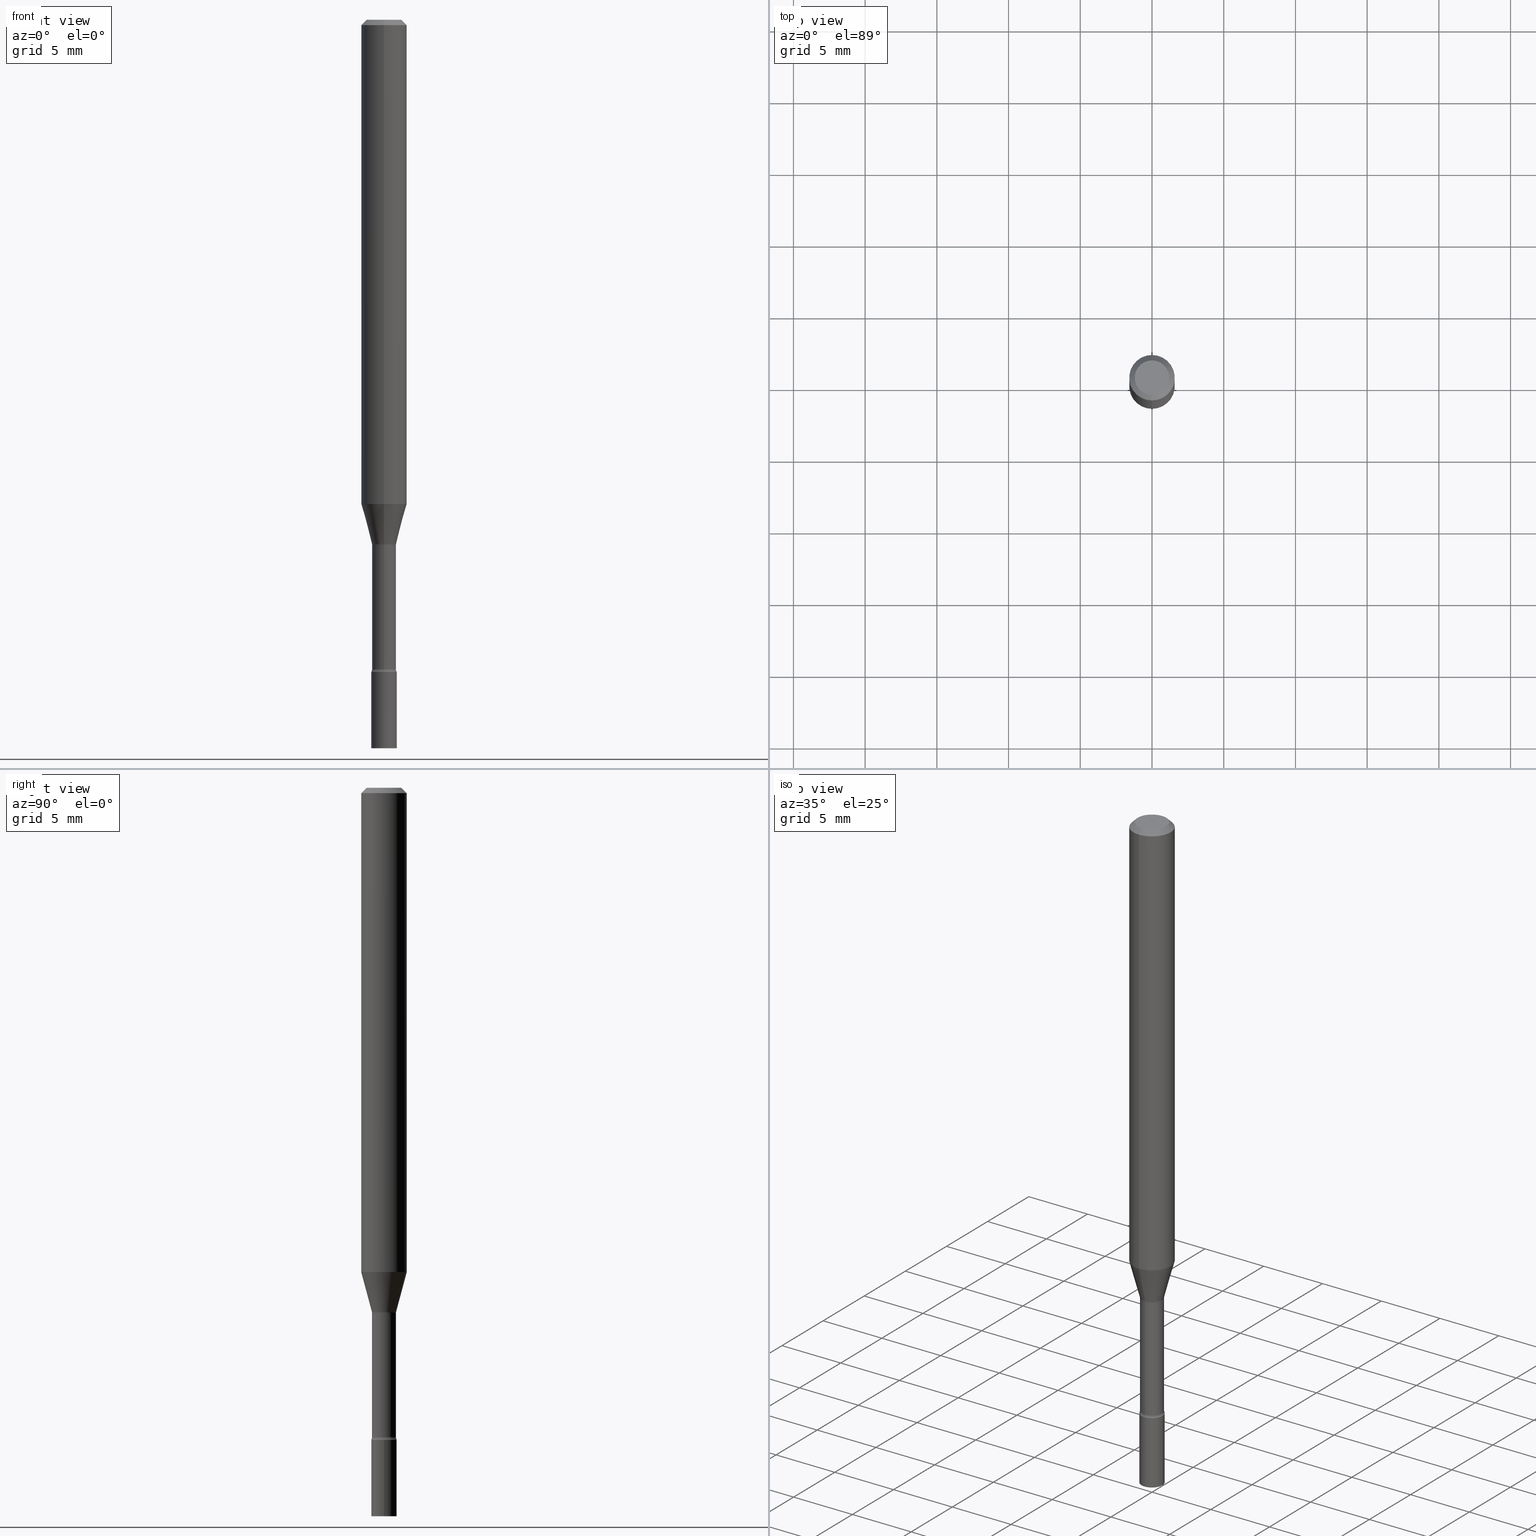
[diagram: canonical four-view strip — front | top / right | iso, engineering-drawing reading convention]
A machine part, canonical four-view strip (front | top / right | iso — engineering-drawing reading convention). The complete STEP part file that produces these views, byte-faithful:
ISO-10303-21;
HEADER;
FILE_DESCRIPTION (( 'STEP AP203' ),
    '1' );
FILE_NAME ('03469.STEP',
    '2024-03-08T21:27:20',
    ( '' ),
    ( '' ),
    'SwSTEP 2.0',
    'SolidWorks 2023',
    '' );
FILE_SCHEMA (( 'CONFIG_CONTROL_DESIGN' ));
ENDSEC;

DATA;
#1 = CARTESIAN_POINT ( 'NONE',  ( 3.668234508538909571E-31, -5.237177185941251155E-17, -0.01500000000000003067 ) ) ;
#2 = DIRECTION ( 'NONE',  ( -2.445489672359268108E-29, 3.491451457294160255E-15, 1.000000000000000000 ) ) ;
#3 = EDGE_CURVE ( 'NONE', #177, #472, #390, .T. ) ;
#4 = APPROVAL_STATUS ( 'not_yet_approved' ) ;
#5 = VECTOR ( 'NONE', #147, 39.37007874015748143 ) ;
#6 = APPROVAL ( #169, 'UNSPECIFIED' ) ;
#7 = CARTESIAN_POINT ( 'NONE',  ( 0.000000000000000000, 0.000000000000000000, 0.000000000000000000 ) ) ;
#8 = COORDINATED_UNIVERSAL_TIME_OFFSET ( 5, 0, .BEHIND. ) ;
#9 = ADVANCED_FACE ( 'NONE', ( #60 ), #498, .T. ) ;
#10 = ORIENTED_EDGE ( 'NONE', *, *, #168, .T. ) ;
#11 = APPROVAL_DATE_TIME ( #402, #151 ) ;
#12 = CLOSED_SHELL ( 'NONE', ( #445, #17, #199, #361, #441, #197, #440, #219, #27, #121, #187, #38, #231, #394 ) ) ;
#13 = DIRECTION ( 'NONE',  ( -6.982962677686266711E-15, -1.000000000000000000, 3.491451457294160649E-15 ) ) ;
#14 = AXIS2_PLACEMENT_3D ( 'NONE', #43, #270, #267 ) ;
#15 = PLANE ( 'NONE',  #26 ) ;
#16 = DIRECTION ( 'NONE',  ( 1.000000000000000000, -6.982962677686265922E-15, 4.876176775795936353E-29 ) ) ;
#17 = ADVANCED_FACE ( 'NONE', ( #399 ), #87, .T. ) ;
#18 = PERSON_AND_ORGANIZATION ( #368, #433 ) ;
#19 = EDGE_LOOP ( 'NONE', ( #506, #467, #296, #458 ) ) ;
#20 = DIRECTION ( 'NONE',  ( -2.445468806185136597E-29, 3.491481338843145583E-15, 1.000000000000000000 ) ) ;
#21 = DIRECTION ( 'NONE',  ( -2.445489672359267547E-29, 3.491451457294160649E-15, 1.000000000000000000 ) ) ;
#22 = FACE_OUTER_BOUND ( 'NONE', #391, .T. ) ;
#23 = CARTESIAN_POINT ( 'NONE',  ( 4.440892098500625669E-16, 0.06250000000000000000, -2.182157160808850159E-16 ) ) ;
#24 = CARTESIAN_POINT ( 'NONE',  ( 2.337685600650728039E-16, 0.03289999999999997787, -1.148687529449777837E-16 ) ) ;
#25 = DIRECTION ( 'NONE',  ( 2.445489672359268108E-29, -3.491451457294160255E-15, -1.000000000000000000 ) ) ;
#26 = AXIS2_PLACEMENT_3D ( 'NONE', #415, #411, #290 ) ;
#27 = ADVANCED_FACE ( 'NONE', ( #156 ), #294, .T. ) ;
#28 = CARTESIAN_POINT ( 'NONE',  ( 2.486899575160791170E-16, 0.03499999999999379302, -1.790000000000000258 ) ) ;
#29 = MANIFOLD_SOLID_BREP ( 'Body-Move/Copy2[1]', #396 ) ;
#30 = DIRECTION ( 'NONE',  ( 7.105427357601001859E-15, 1.000000000000000000, 0.000000000000000000 ) ) ;
#31 = ADVANCED_FACE ( 'NONE', ( #366 ), #41, .T. ) ;
#32 = DIRECTION ( 'NONE',  ( -2.445468806185136877E-29, 3.491481338843145188E-15, 1.000000000000000000 ) ) ;
#33 = AXIS2_PLACEMENT_3D ( 'NONE', #331, #201, #93 ) ;
#34 = LOCAL_TIME ( 16, 27, 20.00000000000000000, #8 ) ;
#35 = FACE_OUTER_BOUND ( 'NONE', #339, .T. ) ;
#36 = CARTESIAN_POINT ( 'NONE',  ( 3.840629472727447874E-16, 0.04749999999999999362, -1.947592745229183872E-16 ) ) ;
#37 = ADVANCED_BREP_SHAPE_REPRESENTATION ( '03469', ( #29, #189, #126 ), #146 ) ;
#38 = ADVANCED_FACE ( 'NONE', ( #478 ), #316, .F. ) ;
#39 = CIRCLE ( 'NONE', #517, 0.03500000000000000333 ) ;
#40 = AXIS2_PLACEMENT_3D ( 'NONE', #380, #494, #99 ) ;
#41 = PLANE ( 'NONE',  #83 ) ;
#42 = EDGE_CURVE ( 'NONE', #447, #298, #39, .T. ) ;
#43 = CARTESIAN_POINT ( 'NONE',  ( 3.526304362048191557E-29, -5.034628061512206795E-15, -1.441974787463810914 ) ) ;
#44 = EDGE_CURVE ( 'NONE', #370, #413, #479, .T. ) ;
#45 = APPROVAL ( #484, 'UNSPECIFIED' ) ;
#46 = DIRECTION ( 'NONE',  ( -2.438088387897960049E-29, 3.491481338843145188E-15, 1.000000000000000000 ) ) ;
#47 = DIRECTION ( 'NONE',  ( 1.000000000000000000, -7.105427357601001070E-15, 4.926315142598649056E-29 ) ) ;
#48 = CALENDAR_DATE ( 2024, 8, 3 ) ;
#49 = AXIS2_PLACEMENT_3D ( 'NONE', #228, #468, #30 ) ;
#50 = DIRECTION ( 'NONE',  ( 1.000000000000000000, -6.982962677686276966E-15, 0.000000000000000000 ) ) ;
#51 = ORIENTED_EDGE ( 'NONE', *, *, #88, .F. ) ;
#52 = PERSON_AND_ORGANIZATION_ROLE ( 'design_owner' ) ;
#53 = CARTESIAN_POINT ( 'NONE',  ( 3.407447217031514627E-16, 0.03341111260565895330, -1.438092501787272992 ) ) ;
#54 = ORIENTED_EDGE ( 'NONE', *, *, #85, .T. ) ;
#55 = CARTESIAN_POINT ( 'NONE',  ( 4.890937612370273194E-29, -6.982962677686291165E-15, -2.000000000000000000 ) ) ;
#56 = CARTESIAN_POINT ( 'NONE',  ( 0.000000000000000000, 0.000000000000000000, 0.000000000000000000 ) ) ;
#57 = ORIENTED_EDGE ( 'NONE', *, *, #430, .F. ) ;
#58 = CIRCLE ( 'NONE', #125, 0.04749999999999999362 ) ;
#59 = CARTESIAN_POINT ( 'NONE',  ( 4.377389163071394665E-29, -6.249751596529231267E-15, -1.790000000000000036 ) ) ;
#60 = FACE_OUTER_BOUND ( 'NONE', #170, .T. ) ;
#61 = DATE_AND_TIME ( #280, #277 ) ;
#62 = VERTEX_POINT ( 'NONE', #405 ) ;
#63 = CARTESIAN_POINT ( 'NONE',  ( 2.412292587905977528E-16, 0.03289999999999373287, -1.782345589506695971 ) ) ;
#64 = EDGE_CURVE ( 'NONE', #413, #62, #158, .T. ) ;
#65 = PLANE ( 'NONE',  #414 ) ;
#66 = EDGE_CURVE ( 'NONE', #298, #447, #381, .T. ) ;
#67 = CARTESIAN_POINT ( 'NONE',  ( 3.668234508538909571E-31, -5.237177185941251155E-17, -0.01500000000000003067 ) ) ;
#68 = ORIENTED_EDGE ( 'NONE', *, *, #162, .F. ) ;
#69 = DIRECTION ( 'NONE',  ( -1.000000000000000000, 6.982962677686265922E-15, -4.883557194083112340E-29 ) ) ;
#70 = AXIS2_PLACEMENT_3D ( 'NONE', #297, #460, #448 ) ;
#71 = LINE ( 'NONE', #435, #263 ) ;
#72 = ORIENTED_EDGE ( 'NONE', *, *, #315, .F. ) ;
#73 = DIRECTION ( 'NONE',  ( -2.445489672359267828E-29, 3.491451457294160649E-15, 1.000000000000000000 ) ) ;
#74 = ORIENTED_EDGE ( 'NONE', *, *, #194, .T. ) ;
#75 = CARTESIAN_POINT ( 'NONE',  ( 4.440892098500952553E-16, 0.06249999999999993755, -0.01500000000000024751 ) ) ;
#76 = CARTESIAN_POINT ( 'NONE',  ( -4.364351673553916201E-16, -0.06250000000000000000, 2.182157160808850159E-16 ) ) ;
#77 = CIRCLE ( 'NONE', #465, 0.01500000000000007924 ) ;
#78 = CARTESIAN_POINT ( 'NONE',  ( -4.364351673553912750E-16, -0.06250000000000005551, -0.01499999999999981209 ) ) ;
#79 = FACE_OUTER_BOUND ( 'NONE', #389, .T. ) ;
#80 = EDGE_CURVE ( 'NONE', #514, #512, #206, .T. ) ;
#81 = CC_DESIGN_PERSON_AND_ORGANIZATION_ASSIGNMENT ( #289, #161, ( #392 ) ) ;
#82 = DIRECTION ( 'NONE',  ( -6.982962677686265922E-15, -1.000000000000000000, 0.000000000000000000 ) ) ;
#83 = AXIS2_PLACEMENT_3D ( 'NONE', #520, #46, #362 ) ;
#84 = TOROIDAL_SURFACE ( 'NONE', #216, 0.04790000000000000507, 0.01500000000000002720 ) ;
#85 = EDGE_CURVE ( 'NONE', #365, #298, #77, .T. ) ;
#86 = LINE ( 'NONE', #116, #476 ) ;
#87 = CYLINDRICAL_SURFACE ( 'NONE', #120, 0.03289999999999997787 ) ;
#88 = EDGE_CURVE ( 'NONE', #365, #177, #461, .T. ) ;
#89 = SECURITY_CLASSIFICATION_LEVEL ( 'unclassified' ) ;
#90 = VECTOR ( 'NONE', #73, 39.37007874015748143 ) ;
#91 = APPROVAL_ROLE ( '' ) ;
#92 = AXIS2_PLACEMENT_3D ( 'NONE', #55, #181, #348 ) ;
#93 = DIRECTION ( 'NONE',  ( 1.000000000000000000, -6.982962677686265922E-15, 4.876176775795936353E-29 ) ) ;
#94 = CALENDAR_DATE ( 2024, 8, 3 ) ;
#95 = DIRECTION ( 'NONE',  ( -6.982962677686265922E-15, -1.000000000000000000, 3.483106191921935554E-15 ) ) ;
#96 = VERTEX_POINT ( 'NONE', #75 ) ;
#97 = PRODUCT_RELATED_PRODUCT_CATEGORY ( 'detail', '', ( #274 ) ) ;
#98 = PERSON_AND_ORGANIZATION ( #368, #433 ) ;
#99 = DIRECTION ( 'NONE',  ( -6.982962677686265922E-15, -1.000000000000000000, 4.370956789862821150E-15 ) ) ;
#100 = DATE_AND_TIME ( #129, #34 ) ;
#101 = CIRCLE ( 'NONE', #426, 0.03341111260566397706 ) ;
#102 = VECTOR ( 'NONE', #107, 39.37007874015748143 ) ;
#103 = DIRECTION ( 'NONE',  ( 4.937700262164548042E-15, 0.7071067811865451302, -0.7071067811865499042 ) ) ;
#104 = CARTESIAN_POINT ( 'NONE',  ( 3.516840361018078842E-29, -5.021030161088979322E-15, -1.438092501787272992 ) ) ;
#105 = ORIENTED_EDGE ( 'NONE', *, *, #66, .T. ) ;
#106 = ORIENTED_EDGE ( 'NONE', *, *, #194, .F. ) ;
#107 = DIRECTION ( 'NONE',  ( -2.445489672359267828E-29, 3.491451457294160649E-15, 1.000000000000000000 ) ) ;
#108 = EDGE_LOOP ( 'NONE', ( #356, #164 ) ) ;
#109 = CARTESIAN_POINT ( 'NONE',  ( 4.358670540980283234E-29, -6.223026365132013835E-15, -1.782345589506695971 ) ) ;
#110 = ORIENTED_EDGE ( 'NONE', *, *, #471, .F. ) ;
#111 = CYLINDRICAL_SURFACE ( 'NONE', #327, 0.03289999999999997787 ) ;
#112 = CIRCLE ( 'NONE', #284, 0.01500000000000002720 ) ;
#113 = CYLINDRICAL_SURFACE ( 'NONE', #238, 0.06250000000000000000 ) ;
#114 = CC_DESIGN_APPROVAL ( #45, ( #392 ) ) ;
#115 = EDGE_LOOP ( 'NONE', ( #344, #135, #254, #325 ) ) ;
#116 = CARTESIAN_POINT ( 'NONE',  ( -2.333085523452895390E-16, -0.03341111260566900082, -1.438092501787272992 ) ) ;
#117 = ORIENTED_EDGE ( 'NONE', *, *, #162, .T. ) ;
#118 = LENGTH_MEASURE_WITH_UNIT ( LENGTH_MEASURE( 0.02539999999999999897 ), #185 );
#119 = ORIENTED_EDGE ( 'NONE', *, *, #266, .T. ) ;
#120 = AXIS2_PLACEMENT_3D ( 'NONE', #516, #2, #229 ) ;
#121 = ADVANCED_FACE ( 'NONE', ( #306 ), #383, .F. ) ;
#122 = VECTOR ( 'NONE', #205, 39.37007874015748143 ) ;
#123 = FACE_OUTER_BOUND ( 'NONE', #128, .T. ) ;
#124 = CARTESIAN_POINT ( 'NONE',  ( 0.03500000000000000333, -2.444036937190193250E-16, 1.706661871528577808E-30 ) ) ;
#125 = AXIS2_PLACEMENT_3D ( 'NONE', #283, #240, #13 ) ;
#126 = AXIS2_PLACEMENT_3D ( 'NONE', #7, #408, #412 ) ;
#127 = CARTESIAN_POINT ( 'NONE',  ( -3.344839122611369110E-16, -0.04790000000000504271, -1.441974787463810692 ) ) ;
#128 = EDGE_LOOP ( 'NONE', ( #428, #72, #117, #501 ) ) ;
#129 = CALENDAR_DATE ( 2024, 8, 3 ) ;
#130 = CIRCLE ( 'NONE', #70, 0.03341111260566397706 ) ;
#131 = DIRECTION ( 'NONE',  ( -6.982962677686265922E-15, -1.000000000000000000, 0.000000000000000000 ) ) ;
#132 = CARTESIAN_POINT ( 'NONE',  ( 3.526334450545200357E-29, -5.034584973071959801E-15, -1.441974787463810914 ) ) ;
#133 = COORDINATED_UNIVERSAL_TIME_OFFSET ( 5, 0, .BEHIND. ) ;
#134 = DIRECTION ( 'NONE',  ( -2.445489672359268108E-29, 3.491451457294160255E-15, 1.000000000000000000 ) ) ;
#135 = ORIENTED_EDGE ( 'NONE', *, *, #471, .T. ) ;
#136 = EDGE_CURVE ( 'NONE', #407, #96, #215, .T. ) ;
#137 = FACE_OUTER_BOUND ( 'NONE', #387, .T. ) ;
#138 = TOROIDAL_SURFACE ( 'NONE', #140, 0.04790000000000003977, 0.01500000000000007924 ) ;
#139 = DIRECTION ( 'NONE',  ( -2.445489672359268108E-29, 3.491451457294160255E-15, 1.000000000000000000 ) ) ;
#140 = AXIS2_PLACEMENT_3D ( 'NONE', #109, #303, #260 ) ;
#141 = FACE_OUTER_BOUND ( 'NONE', #321, .T. ) ;
#142 = ORIENTED_EDGE ( 'NONE', *, *, #315, .T. ) ;
#143 = DIRECTION ( 'NONE',  ( 1.000000000000000000, -6.982962677686276966E-15, 0.000000000000000000 ) ) ;
#144 = CARTESIAN_POINT ( 'NONE',  ( 4.358707731713716870E-29, -6.222973105884972225E-15, -1.782345589506695971 ) ) ;
#145 = CYLINDRICAL_SURFACE ( 'NONE', #33, 0.03500000000000000333 ) ;
#146 =( GEOMETRIC_REPRESENTATION_CONTEXT ( 3 ) GLOBAL_UNCERTAINTY_ASSIGNED_CONTEXT ( ( #272 ) ) GLOBAL_UNIT_ASSIGNED_CONTEXT ( ( #401, #309, #474 ) ) REPRESENTATION_CONTEXT ( 'NONE', 'WORKASPACE' ) );
#147 = DIRECTION ( 'NONE',  ( -2.445489672359267828E-29, 3.491451457294160649E-15, 1.000000000000000000 ) ) ;
#148 = ORIENTED_EDGE ( 'NONE', *, *, #319, .F. ) ;
#149 = CARTESIAN_POINT ( 'NONE',  ( -2.297394720958429005E-16, -0.03290000000000503633, -1.441974787463810914 ) ) ;
#150 = ADVANCED_FACE ( 'NONE', ( #222 ), #145, .T. ) ;
#151 = APPROVAL ( #4, 'UNSPECIFIED' ) ;
#152 = CARTESIAN_POINT ( 'NONE',  ( 3.526304362048191557E-29, -5.034628061512206795E-15, -1.441974787463810914 ) ) ;
#153 = DIRECTION ( 'NONE',  ( 2.445489672359268108E-29, -3.491451457294160255E-15, -1.000000000000000000 ) ) ;
#154 = CONICAL_SURFACE ( 'NONE', #421, 0.06250000000000000000, 0.7853981633974483900 ) ;
#155 = CARTESIAN_POINT ( 'NONE',  ( 4.377426513523090216E-29, -6.249698108556547160E-15, -1.790000000000000036 ) ) ;
#156 = FACE_OUTER_BOUND ( 'NONE', #237, .T. ) ;
#157 = DIRECTION ( 'NONE',  ( -2.445489672359268108E-29, 3.491451457294160255E-15, 1.000000000000000000 ) ) ;
#158 = CIRCLE ( 'NONE', #432, 0.03500000000000000333 ) ;
#159 = APPROVAL_PERSON_ORGANIZATION ( #449, #45, #239 ) ;
#160 = MECHANICAL_CONTEXT ( 'NONE', #439, 'mechanical' ) ;
#161 = PERSON_AND_ORGANIZATION_ROLE ( 'creator' ) ;
#162 = EDGE_CURVE ( 'NONE', #385, #472, #112, .T. ) ;
#163 = CC_DESIGN_DATE_AND_TIME_ASSIGNMENT ( #100, #322, ( #236 ) ) ;
#164 = ORIENTED_EDGE ( 'NONE', *, *, #66, .F. ) ;
#165 = AXIS2_PLACEMENT_3D ( 'NONE', #132, #212, #417 ) ;
#166 = CIRCLE ( 'NONE', #232, 0.03289999999999995706 ) ;
#167 = DIRECTION ( 'NONE',  ( -2.445489672359267828E-29, 3.491451457294160649E-15, 1.000000000000000000 ) ) ;
#168 = EDGE_CURVE ( 'NONE', #469, #301, #58, .T. ) ;
#169 = APPROVAL_STATUS ( 'not_yet_approved' ) ;
#170 = EDGE_LOOP ( 'NONE', ( #281, #355, #500, #358 ) ) ;
#171 = DIRECTION ( 'NONE',  ( 6.982962677686265922E-15, 1.000000000000000000, -3.483106191921935554E-15 ) ) ;
#172 = ORIENTED_EDGE ( 'NONE', *, *, #3, .F. ) ;
#173 = CARTESIAN_POINT ( 'NONE',  ( 0.000000000000000000, 0.000000000000000000, 0.000000000000000000 ) ) ;
#174 = ORIENTED_EDGE ( 'NONE', *, *, #423, .T. ) ;
#175 = CIRCLE ( 'NONE', #49, 0.01500000000000002720 ) ;
#176 = DIRECTION ( 'NONE',  ( -2.445489672359268108E-29, 3.491451457294160255E-15, 1.000000000000000000 ) ) ;
#177 = VERTEX_POINT ( 'NONE', #242 ) ;
#178 = EDGE_LOOP ( 'NONE', ( #347, #191, #292, #259 ) ) ;
#179 = ORIENTED_EDGE ( 'NONE', *, *, #313, .T. ) ;
#180 = DIRECTION ( 'NONE',  ( 2.445489672359267547E-29, -3.491451457294160649E-15, -1.000000000000000000 ) ) ;
#181 = DIRECTION ( 'NONE',  ( -2.445468806185136597E-29, 3.491481338843145583E-15, 1.000000000000000000 ) ) ;
#182 = CARTESIAN_POINT ( 'NONE',  ( 0.03500000000000000333, -6.494155290248250444E-15, -1.790000000000000036 ) ) ;
#183 = EDGE_LOOP ( 'NONE', ( #106, #265, #217, #68 ) ) ;
#184 = LOCAL_TIME ( 16, 27, 20.00000000000000000, #282 ) ;
#185 =( LENGTH_UNIT ( ) NAMED_UNIT ( * ) SI_UNIT ( $, .METRE. ) );
#186 = VERTEX_POINT ( 'NONE', #53 ) ;
#187 = ADVANCED_FACE ( 'NONE', ( #203 ), #65, .F. ) ;
#188 = DIRECTION ( 'NONE',  ( -6.982962677686266711E-15, -1.000000000000000000, 0.000000000000000000 ) ) ;
#189 = MANIFOLD_SOLID_BREP ( 'Body-Move/Copy2[2]', #12 ) ;
#190 = DIRECTION ( 'NONE',  ( -2.445489672359268108E-29, 3.491451457294160255E-15, 1.000000000000000000 ) ) ;
#191 = ORIENTED_EDGE ( 'NONE', *, *, #400, .F. ) ;
#192 = AXIS2_PLACEMENT_3D ( 'NONE', #320, #314, #275 ) ;
#193 = VECTOR ( 'NONE', #103, 39.37007874015748143 ) ;
#194 = EDGE_CURVE ( 'NONE', #186, #385, #101, .T. ) ;
#195 = CARTESIAN_POINT ( 'NONE',  ( 3.516840361018078842E-29, -5.021030161088979322E-15, -1.438092501787272992 ) ) ;
#196 = CIRCLE ( 'NONE', #40, 0.06250000000000000000 ) ;
#197 = ADVANCED_FACE ( 'NONE', ( #22 ), #403, .T. ) ;
#198 = SHAPE_DEFINITION_REPRESENTATION ( #473, #37 ) ;
#199 = ADVANCED_FACE ( 'NONE', ( #409 ), #138, .F. ) ;
#200 = CARTESIAN_POINT ( 'NONE',  ( 4.377389163071394665E-29, -6.249751596529231267E-15, -1.790000000000000036 ) ) ;
#201 = DIRECTION ( 'NONE',  ( -2.445468806185136597E-29, 3.491481338843145583E-15, 1.000000000000000000 ) ) ;
#202 = PERSON_AND_ORGANIZATION_ROLE ( 'classification_officer' ) ;
#203 = FACE_OUTER_BOUND ( 'NONE', #108, .T. ) ;
#204 = ORIENTED_EDGE ( 'NONE', *, *, #307, .F. ) ;
#205 = DIRECTION ( 'NONE',  ( 1.839019923739599526E-15, 0.2588190451025248473, 0.9659258262890670910 ) ) ;
#206 = CIRCLE ( 'NONE', #496, 0.06250000000000000000 ) ;
#207 = APPROVAL_PERSON_ORGANIZATION ( #285, #6, #91 ) ;
#208 = ORIENTED_EDGE ( 'NONE', *, *, #88, .T. ) ;
#209 = DIRECTION ( 'NONE',  ( -2.445489672359268108E-29, 3.491451457294160255E-15, 1.000000000000000000 ) ) ;
#210 = CARTESIAN_POINT ( 'NONE',  ( 2.444036937190630575E-16, 0.03499999999999375139, -1.790000000000000036 ) ) ;
#211 = CARTESIAN_POINT ( 'NONE',  ( 0.03500000000000000333, -7.227366371405310342E-15, -2.000000000000000000 ) ) ;
#212 = DIRECTION ( 'NONE',  ( -2.445489672359268108E-29, 3.491451457294160255E-15, 1.000000000000000000 ) ) ;
#213 = LINE ( 'NONE', #23, #510 ) ;
#214 = EDGE_LOOP ( 'NONE', ( #299, #208, #204, #504 ) ) ;
#215 = CIRCLE ( 'NONE', #326, 0.06250000000000000000 ) ;
#216 = AXIS2_PLACEMENT_3D ( 'NONE', #152, #264, #422 ) ;
#217 = ORIENTED_EDGE ( 'NONE', *, *, #3, .T. ) ;
#218 = CARTESIAN_POINT ( 'NONE',  ( 7.071214162504274369E-46, -1.009564721191249961E-31, -2.891533030144581507E-17 ) ) ;
#219 = ADVANCED_FACE ( 'NONE', ( #79 ), #333, .T. ) ;
#220 = ORIENTED_EDGE ( 'NONE', *, *, #350, .T. ) ;
#221 = ORIENTED_EDGE ( 'NONE', *, *, #271, .F. ) ;
#222 = FACE_OUTER_BOUND ( 'NONE', #19, .T. ) ;
#223 = CARTESIAN_POINT ( 'NONE',  ( -4.287811248607203282E-16, -0.06250000000000005551, -0.01499999999999981209 ) ) ;
#224 = EDGE_CURVE ( 'NONE', #376, #472, #462, .T. ) ;
#225 = AXIS2_PLACEMENT_3D ( 'NONE', #59, #502, #143 ) ;
#226 = CARTESIAN_POINT ( 'NONE',  ( 0.000000000000000000, 0.000000000000000000, 0.000000000000000000 ) ) ;
#227 = APPLICATION_CONTEXT ( 'configuration controlled 3d designs of mechanical parts and assemblies' ) ;
#228 = CARTESIAN_POINT ( 'NONE',  ( 3.403499704291231787E-16, 0.04789999999999496744, -1.441974787463811136 ) ) ;
#229 = DIRECTION ( 'NONE',  ( -6.982962677686265922E-15, -1.000000000000000000, 3.491451457294159860E-15 ) ) ;
#230 = CIRCLE ( 'NONE', #310, 0.03289999999999995706 ) ;
#231 = ADVANCED_FACE ( 'NONE', ( #141 ), #111, .T. ) ;
#232 = AXIS2_PLACEMENT_3D ( 'NONE', #492, #176, #131 ) ;
#233 = CARTESIAN_POINT ( 'NONE',  ( -4.364351673553592768E-16, -0.06250000000000467681, -1.329531296095961101 ) ) ;
#234 = CARTESIAN_POINT ( 'NONE',  ( 3.403499704291318069E-16, 0.04789999999999381558, -1.782345589506696193 ) ) ;
#235 = PERSON_AND_ORGANIZATION_ROLE ( 'design_supplier' ) ;
#236 = PRODUCT_DEFINITION ( 'UNKNOWN', '', #392, #354 ) ;
#237 = EDGE_LOOP ( 'NONE', ( #110, #312, #255, #452 ) ) ;
#238 = AXIS2_PLACEMENT_3D ( 'NONE', #226, #424, #359 ) ;
#239 = APPROVAL_ROLE ( '' ) ;
#240 = DIRECTION ( 'NONE',  ( -2.445489672359268108E-29, 3.491451457294160255E-15, 1.000000000000000000 ) ) ;
#241 = DIRECTION ( 'NONE',  ( -6.982962677686266711E-15, -1.000000000000000000, 0.000000000000000000 ) ) ;
#242 = CARTESIAN_POINT ( 'NONE',  ( 2.337685600651166350E-16, 0.03289999999999496799, -1.441974787463810914 ) ) ;
#243 = DIRECTION ( 'NONE',  ( 1.000000000000000000, -6.982962677686276966E-15, 0.000000000000000000 ) ) ;
#244 = EDGE_LOOP ( 'NONE', ( #10, #179 ) ) ;
#245 = COORDINATED_UNIVERSAL_TIME_OFFSET ( 5, 0, .BEHIND. ) ;
#246 = EDGE_CURVE ( 'NONE', #376, #447, #367, .T. ) ;
#247 = DIRECTION ( 'NONE',  ( -2.445489672359268108E-29, 3.491451457294160255E-15, 1.000000000000000000 ) ) ;
#248 = AXIS2_PLACEMENT_3D ( 'NONE', #373, #20, #243 ) ;
#249 = DATE_AND_TIME ( #48, #511 ) ;
#250 = SECURITY_CLASSIFICATION ( '', '', #89 ) ;
#251 = DIRECTION ( 'NONE',  ( -6.982962677686266711E-15, -1.000000000000000000, 0.000000000000000000 ) ) ;
#252 = DIRECTION ( 'NONE',  ( -2.445489672359268108E-29, 3.491451457294160255E-15, 1.000000000000000000 ) ) ;
#253 = DIRECTION ( 'NONE',  ( -2.445489672359268108E-29, 3.491451457294160255E-15, 1.000000000000000000 ) ) ;
#254 = ORIENTED_EDGE ( 'NONE', *, *, #136, .T. ) ;
#255 = ORIENTED_EDGE ( 'NONE', *, *, #363, .T. ) ;
#256 = DIRECTION ( 'NONE',  ( -2.445489672359268108E-29, 3.491451457294160255E-15, 1.000000000000000000 ) ) ;
#257 = FACE_OUTER_BOUND ( 'NONE', #115, .T. ) ;
#258 = ADVANCED_FACE ( 'NONE', ( #137 ), #15, .T. ) ;
#259 = ORIENTED_EDGE ( 'NONE', *, *, #42, .T. ) ;
#260 = DIRECTION ( 'NONE',  ( -6.982962677686265922E-15, -1.000000000000000000, 3.491451457294160255E-15 ) ) ;
#261 = CC_DESIGN_PERSON_AND_ORGANIZATION_ASSIGNMENT ( #334, #453, ( #236 ) ) ;
#262 = CARTESIAN_POINT ( 'NONE',  ( -3.344839122611288252E-16, -0.04790000000000626396, -1.782345589506695749 ) ) ;
#263 = VECTOR ( 'NONE', #32, 39.37007874015748143 ) ;
#264 = DIRECTION ( 'NONE',  ( -2.445489672359268108E-29, 3.491451457294160255E-15, 1.000000000000000000 ) ) ;
#265 = ORIENTED_EDGE ( 'NONE', *, *, #427, .T. ) ;
#266 = EDGE_CURVE ( 'NONE', #365, #376, #166, .T. ) ;
#267 = DIRECTION ( 'NONE',  ( -6.982962677686265133E-15, -1.000000000000000000, 3.491451457294160255E-15 ) ) ;
#268 = ORIENTED_EDGE ( 'NONE', *, *, #423, .F. ) ;
#269 = DIRECTION ( 'NONE',  ( 6.982962677686265922E-15, 1.000000000000000000, -3.491451457294160649E-15 ) ) ;
#270 = DIRECTION ( 'NONE',  ( -2.445489672359268108E-29, 3.491451457294160255E-15, 1.000000000000000000 ) ) ;
#271 = EDGE_CURVE ( 'NONE', #512, #514, #196, .T. ) ;
#272 = UNCERTAINTY_MEASURE_WITH_UNIT (LENGTH_MEASURE( 1.000000000000000082E-05 ), #401, 'distance_accuracy_value', 'NONE');
#273 = CIRCLE ( 'NONE', #225, 0.03500000000000000333 ) ;
#274 = PRODUCT ( '03469', '03469', '', ( #160 ) ) ;
#275 = DIRECTION ( 'NONE',  ( -6.982962677686265922E-15, -1.000000000000000000, 3.491451457294160255E-15 ) ) ;
#276 = AXIS2_PLACEMENT_3D ( 'NONE', #56, #374, #16 ) ;
#277 = LOCAL_TIME ( 16, 27, 20.00000000000000000, #372 ) ;
#278 = FACE_OUTER_BOUND ( 'NONE', #183, .T. ) ;
#279 = DIRECTION ( 'NONE',  ( -6.982962677686265922E-15, -1.000000000000000000, 0.000000000000000000 ) ) ;
#280 = CALENDAR_DATE ( 2024, 8, 3 ) ;
#281 = ORIENTED_EDGE ( 'NONE', *, *, #330, .T. ) ;
#282 = COORDINATED_UNIVERSAL_TIME_OFFSET ( 5, 0, .BEHIND. ) ;
#283 = CARTESIAN_POINT ( 'NONE',  ( 7.071214162504274369E-46, -1.009564721191249961E-31, -2.891533030144581507E-17 ) ) ;
#284 = AXIS2_PLACEMENT_3D ( 'NONE', #127, #488, #286 ) ;
#285 = PERSON_AND_ORGANIZATION ( #368, #433 ) ;
#286 = DIRECTION ( 'NONE',  ( -6.982962677686267499E-15, -1.000000000000000000, 0.000000000000000000 ) ) ;
#287 = CARTESIAN_POINT ( 'NONE',  ( 3.526334450545200357E-29, -5.034584973071959801E-15, -1.441974787463810914 ) ) ;
#288 = EDGE_LOOP ( 'NONE', ( #341, #335, #352, #268 ) ) ;
#289 = PERSON_AND_ORGANIZATION ( #368, #433 ) ;
#290 = DIRECTION ( 'NONE',  ( -1.000000000000000000, 6.982962677686265922E-15, -4.876176775795935793E-29 ) ) ;
#291 = APPLICATION_PROTOCOL_DEFINITION ( 'international standard', 'config_control_design', 1994, #439 ) ;
#292 = ORIENTED_EDGE ( 'NONE', *, *, #246, .T. ) ;
#293 = DIRECTION ( 'NONE',  ( -6.982962677686266711E-15, -1.000000000000000000, 0.000000000000000000 ) ) ;
#294 = CONICAL_SURFACE ( 'NONE', #304, 0.06250000000000000000, 0.7853981633974483900 ) ;
#295 = CIRCLE ( 'NONE', #92, 0.03500000000000000333 ) ;
#296 = ORIENTED_EDGE ( 'NONE', *, *, #44, .T. ) ;
#297 = CARTESIAN_POINT ( 'NONE',  ( 3.516840361018078842E-29, -5.021030161088979322E-15, -1.438092501787272992 ) ) ;
#298 = VERTEX_POINT ( 'NONE', #28 ) ;
#299 = ORIENTED_EDGE ( 'NONE', *, *, #400, .T. ) ;
#300 = DIRECTION ( 'NONE',  ( -2.445489672359268108E-29, 3.491451457294160255E-15, 1.000000000000000000 ) ) ;
#301 = VERTEX_POINT ( 'NONE', #346 ) ;
#302 = CARTESIAN_POINT ( 'NONE',  ( -2.333085523452895390E-16, -0.03341111260566900082, -1.438092501787272992 ) ) ;
#303 = DIRECTION ( 'NONE',  ( -2.445489672359268108E-29, 3.491451457294160255E-15, 1.000000000000000000 ) ) ;
#304 = AXIS2_PLACEMENT_3D ( 'NONE', #1, #153, #311 ) ;
#305 = AXIS2_PLACEMENT_3D ( 'NONE', #195, #190, #188 ) ;
#306 = FACE_OUTER_BOUND ( 'NONE', #244, .T. ) ;
#307 = EDGE_CURVE ( 'NONE', #472, #177, #499, .T. ) ;
#308 = ORIENTED_EDGE ( 'NONE', *, *, #246, .F. ) ;
#309 =( NAMED_UNIT ( * ) PLANE_ANGLE_UNIT ( ) SI_UNIT ( $, .RADIAN. ) );
#310 = AXIS2_PLACEMENT_3D ( 'NONE', #144, #388, #464 ) ;
#311 = DIRECTION ( 'NONE',  ( 6.982962677686265922E-15, 1.000000000000000000, -3.483106191921935554E-15 ) ) ;
#312 = ORIENTED_EDGE ( 'NONE', *, *, #168, .F. ) ;
#313 = EDGE_CURVE ( 'NONE', #301, #469, #353, .T. ) ;
#314 = DIRECTION ( 'NONE',  ( -2.445489672359268108E-29, 3.491451457294160255E-15, 1.000000000000000000 ) ) ;
#315 = EDGE_CURVE ( 'NONE', #385, #186, #130, .T. ) ;
#316 = TOROIDAL_SURFACE ( 'NONE', #192, 0.04790000000000003977, 0.01500000000000007924 ) ;
#317 = EDGE_CURVE ( 'NONE', #62, #413, #273, .T. ) ;
#318 = APPLICATION_PROTOCOL_DEFINITION ( 'international standard', 'config_control_design', 1994, #227 ) ;
#319 = EDGE_CURVE ( 'NONE', #96, #407, #444, .T. ) ;
#320 = CARTESIAN_POINT ( 'NONE',  ( 4.358670540980283234E-29, -6.223026365132013835E-15, -1.782345589506695971 ) ) ;
#321 = EDGE_LOOP ( 'NONE', ( #51, #119, #489, #172 ) ) ;
#322 = DATE_TIME_ROLE ( 'creation_date' ) ;
#323 = APPROVAL_DATE_TIME ( #249, #45 ) ;
#324 = DIRECTION ( 'NONE',  ( -2.445468806185136597E-29, 3.491481338843145583E-15, 1.000000000000000000 ) ) ;
#325 = ORIENTED_EDGE ( 'NONE', *, *, #363, .F. ) ;
#326 = AXIS2_PLACEMENT_3D ( 'NONE', #505, #256, #463 ) ;
#327 = AXIS2_PLACEMENT_3D ( 'NONE', #173, #209, #340 ) ;
#328 = APPROVAL_PERSON_ORGANIZATION ( #364, #151, #437 ) ;
#329 = APPROVAL_DATE_TIME ( #375, #6 ) ;
#330 = EDGE_CURVE ( 'NONE', #370, #450, #295, .T. ) ;
#331 = CARTESIAN_POINT ( 'NONE',  ( 0.000000000000000000, 0.000000000000000000, 0.000000000000000000 ) ) ;
#332 = ORIENTED_EDGE ( 'NONE', *, *, #271, .T. ) ;
#333 = CYLINDRICAL_SURFACE ( 'NONE', #429, 0.06250000000000000000 ) ;
#334 = PERSON_AND_ORGANIZATION ( #368, #433 ) ;
#335 = ORIENTED_EDGE ( 'NONE', *, *, #360, .T. ) ;
#336 = LINE ( 'NONE', #454, #193 ) ;
#337 = ORIENTED_EDGE ( 'NONE', *, *, #80, .F. ) ;
#338 = CARTESIAN_POINT ( 'NONE',  ( 3.516840361018078842E-29, -5.021030161088979322E-15, -1.438092501787272992 ) ) ;
#339 = EDGE_LOOP ( 'NONE', ( #434, #74, #495, #221 ) ) ;
#340 = DIRECTION ( 'NONE',  ( -6.982962677686265922E-15, -1.000000000000000000, 3.491451457294159860E-15 ) ) ;
#341 = ORIENTED_EDGE ( 'NONE', *, *, #80, .T. ) ;
#342 = EDGE_CURVE ( 'NONE', #450, #370, #343, .T. ) ;
#343 = CIRCLE ( 'NONE', #248, 0.03500000000000000333 ) ;
#344 = ORIENTED_EDGE ( 'NONE', *, *, #313, .F. ) ;
#345 = EDGE_LOOP ( 'NONE', ( #455, #54, #105, #308 ) ) ;
#346 = CARTESIAN_POINT ( 'NONE',  ( -3.773273898774340269E-16, -0.04749999999999999362, 1.369286139200268064E-16 ) ) ;
#347 = ORIENTED_EDGE ( 'NONE', *, *, #85, .F. ) ;
#348 = DIRECTION ( 'NONE',  ( 1.000000000000000000, -6.982962677686276966E-15, 0.000000000000000000 ) ) ;
#349 = FACE_OUTER_BOUND ( 'NONE', #288, .T. ) ;
#350 = EDGE_CURVE ( 'NONE', #186, #512, #416, .T. ) ;
#351 = AXIS2_PLACEMENT_3D ( 'NONE', #410, #157, #279 ) ;
#352 = ORIENTED_EDGE ( 'NONE', *, *, #136, .F. ) ;
#353 = CIRCLE ( 'NONE', #382, 0.04749999999999999362 ) ;
#354 = DESIGN_CONTEXT ( 'detailed design', #227, 'design' ) ;
#355 = ORIENTED_EDGE ( 'NONE', *, *, #470, .T. ) ;
#356 = ORIENTED_EDGE ( 'NONE', *, *, #42, .F. ) ;
#357 = LINE ( 'NONE', #223, #397 ) ;
#358 = ORIENTED_EDGE ( 'NONE', *, *, #44, .F. ) ;
#359 = DIRECTION ( 'NONE',  ( -6.982962677686265922E-15, -1.000000000000000000, 3.491451457294160255E-15 ) ) ;
#360 = EDGE_CURVE ( 'NONE', #512, #96, #213, .T. ) ;
#361 = ADVANCED_FACE ( 'NONE', ( #257 ), #154, .T. ) ;
#362 = DIRECTION ( 'NONE',  ( 1.000000000000000000, -6.982962677686265922E-15, 4.876176775795935793E-29 ) ) ;
#363 = EDGE_CURVE ( 'NONE', #469, #96, #336, .T. ) ;
#364 = PERSON_AND_ORGANIZATION ( #368, #433 ) ;
#365 = VERTEX_POINT ( 'NONE', #63 ) ;
#366 = FACE_OUTER_BOUND ( 'NONE', #493, .T. ) ;
#367 = CIRCLE ( 'NONE', #518, 0.01500000000000007924 ) ;
#368 = PERSON ( 'UNSPECIFIED', 'UNSPECIFIED', 'UNSPECIFIED', ('UNSPECIFIED'), ('UNSPECIFIED'), ('UNSPECIFIED') ) ;
#369 = CALENDAR_DATE ( 2024, 8, 3 ) ;
#370 = VERTEX_POINT ( 'NONE', #211 ) ;
#371 = ORIENTED_EDGE ( 'NONE', *, *, #360, .F. ) ;
#372 = COORDINATED_UNIVERSAL_TIME_OFFSET ( 5, 0, .BEHIND. ) ;
#373 = CARTESIAN_POINT ( 'NONE',  ( 4.890937612370273194E-29, -6.982962677686291165E-15, -2.000000000000000000 ) ) ;
#374 = DIRECTION ( 'NONE',  ( -2.445468806185136597E-29, 3.491481338843145583E-15, 1.000000000000000000 ) ) ;
#375 = DATE_AND_TIME ( #369, #184 ) ;
#376 = VERTEX_POINT ( 'NONE', #425 ) ;
#377 = CARTESIAN_POINT ( 'NONE',  ( 2.374002335562076701E-16, 0.03341111260565896024, -1.438092501787272992 ) ) ;
#378 = DIRECTION ( 'NONE',  ( -6.982962677686265922E-15, -1.000000000000000000, 3.491451457294160255E-15 ) ) ;
#379 = ORIENTED_EDGE ( 'NONE', *, *, #317, .T. ) ;
#380 = CARTESIAN_POINT ( 'NONE',  ( 3.251355053681105951E-29, -4.641993981272437762E-15, -1.329531296095961546 ) ) ;
#381 = CIRCLE ( 'NONE', #351, 0.03500000000000000333 ) ;
#382 = AXIS2_PLACEMENT_3D ( 'NONE', #218, #247, #384 ) ;
#383 = PLANE ( 'NONE',  #509 ) ;
#384 = DIRECTION ( 'NONE',  ( -6.982962677686266711E-15, -1.000000000000000000, 3.491451457294160649E-15 ) ) ;
#385 = VERTEX_POINT ( 'NONE', #302 ) ;
#386 = DIRECTION ( 'NONE',  ( 7.105427357601001859E-15, 1.000000000000000000, 0.000000000000000000 ) ) ;
#387 = EDGE_LOOP ( 'NONE', ( #491, #418 ) ) ;
#388 = DIRECTION ( 'NONE',  ( -2.445489672359268108E-29, 3.491451457294160255E-15, 1.000000000000000000 ) ) ;
#389 = EDGE_LOOP ( 'NONE', ( #371, #332, #174, #148 ) ) ;
#390 = CIRCLE ( 'NONE', #165, 0.03289999999999999869 ) ;
#391 = EDGE_LOOP ( 'NONE', ( #142, #220, #337, #57 ) ) ;
#392 = PRODUCT_DEFINITION_FORMATION_WITH_SPECIFIED_SOURCE ( 'ANY', '', #274, .NOT_KNOWN. ) ;
#393 = CARTESIAN_POINT ( 'NONE',  ( -2.444036937189758391E-16, -0.03500000000000629691, -1.789999999999999813 ) ) ;
#394 = ADVANCED_FACE ( 'NONE', ( #123 ), #456, .F. ) ;
#395 = DIRECTION ( 'NONE',  ( -1.807323732225329350E-15, -0.2588190451025180194, 0.9659258262890689783 ) ) ;
#396 = CLOSED_SHELL ( 'NONE', ( #9, #31, #150, #258 ) ) ;
#397 = VECTOR ( 'NONE', #508, 39.37007874015748143 ) ;
#398 = CC_DESIGN_APPROVAL ( #151, ( #250 ) ) ;
#399 = FACE_OUTER_BOUND ( 'NONE', #214, .T. ) ;
#400 = EDGE_CURVE ( 'NONE', #376, #365, #230, .T. ) ;
#401 =( CONVERSION_BASED_UNIT ( 'INCH', #118 ) LENGTH_UNIT ( ) NAMED_UNIT ( #480 ) );
#402 = DATE_AND_TIME ( #94, #483 ) ;
#403 = CONICAL_SURFACE ( 'NONE', #475, 0.03341111260566397706, 0.2617993877991501850 ) ;
#404 = AXIS2_PLACEMENT_3D ( 'NONE', #287, #134, #293 ) ;
#405 = CARTESIAN_POINT ( 'NONE',  ( -0.03500000000000000333, -6.367667179591725930E-15, -1.790000000000000036 ) ) ;
#406 = CC_DESIGN_DATE_AND_TIME_ASSIGNMENT ( #61, #446, ( #250 ) ) ;
#407 = VERTEX_POINT ( 'NONE', #78 ) ;
#408 = DIRECTION ( 'NONE',  ( 0.000000000000000000, 0.000000000000000000, 1.000000000000000000 ) ) ;
#409 = FACE_OUTER_BOUND ( 'NONE', #345, .T. ) ;
#410 = CARTESIAN_POINT ( 'NONE',  ( 4.377426513523090216E-29, -6.249698108556547160E-15, -1.790000000000000036 ) ) ;
#411 = DIRECTION ( 'NONE',  ( 2.438088387897960049E-29, -3.491481338843145188E-15, -1.000000000000000000 ) ) ;
#412 = DIRECTION ( 'NONE',  ( 1.000000000000000000, 0.000000000000000000, 0.000000000000000000 ) ) ;
#413 = VERTEX_POINT ( 'NONE', #182 ) ;
#414 = AXIS2_PLACEMENT_3D ( 'NONE', #210, #21, #457 ) ;
#415 = CARTESIAN_POINT ( 'NONE',  ( 2.444036937190682344E-16, 0.03499999999999301586, -2.000000000000000000 ) ) ;
#416 = LINE ( 'NONE', #377, #122 ) ;
#417 = DIRECTION ( 'NONE',  ( -6.982962677686266711E-15, -1.000000000000000000, 0.000000000000000000 ) ) ;
#418 = ORIENTED_EDGE ( 'NONE', *, *, #342, .F. ) ;
#419 = CARTESIAN_POINT ( 'NONE',  ( 3.668234508538909571E-31, -5.237177185941251155E-17, -0.01500000000000003067 ) ) ;
#420 = CARTESIAN_POINT ( 'NONE',  ( -2.297394720958780048E-16, -0.03289999999999997787, 1.148687529449777837E-16 ) ) ;
#421 = AXIS2_PLACEMENT_3D ( 'NONE', #419, #25, #171 ) ;
#422 = DIRECTION ( 'NONE',  ( -6.982962677686265133E-15, -1.000000000000000000, 3.491451457294160255E-15 ) ) ;
#423 = EDGE_CURVE ( 'NONE', #514, #407, #477, .T. ) ;
#424 = DIRECTION ( 'NONE',  ( -2.445489672359268108E-29, 3.491451457294160255E-15, 1.000000000000000000 ) ) ;
#425 = CARTESIAN_POINT ( 'NONE',  ( -2.297394720958342723E-16, -0.03290000000000618124, -1.782345589506695971 ) ) ;
#426 = AXIS2_PLACEMENT_3D ( 'NONE', #104, #253, #251 ) ;
#427 = EDGE_CURVE ( 'NONE', #186, #177, #175, .T. ) ;
#428 = ORIENTED_EDGE ( 'NONE', *, *, #427, .F. ) ;
#429 = AXIS2_PLACEMENT_3D ( 'NONE', #497, #252, #378 ) ;
#430 = EDGE_CURVE ( 'NONE', #385, #514, #86, .T. ) ;
#431 = DIRECTION ( 'NONE',  ( -2.445489672359268108E-29, 3.491451457294160255E-15, 1.000000000000000000 ) ) ;
#432 = AXIS2_PLACEMENT_3D ( 'NONE', #200, #324, #50 ) ;
#433 = ORGANIZATION ( 'UNSPECIFIED', 'UNSPECIFIED', '' ) ;
#434 = ORIENTED_EDGE ( 'NONE', *, *, #350, .F. ) ;
#435 = CARTESIAN_POINT ( 'NONE',  ( -0.03500000000000000333, 2.486899575160350887E-16, -1.721627281589217108E-30 ) ) ;
#436 = CARTESIAN_POINT ( 'NONE',  ( 3.251355053681105951E-29, -4.641993981272437762E-15, -1.329531296095961546 ) ) ;
#437 = APPROVAL_ROLE ( '' ) ;
#438 = DIRECTION ( 'NONE',  ( -2.445468806185136877E-29, 3.491481338843145188E-15, 1.000000000000000000 ) ) ;
#439 = APPLICATION_CONTEXT ( 'configuration controlled 3d designs of mechanical parts and assemblies' ) ;
#440 = ADVANCED_FACE ( 'NONE', ( #35 ), #490, .T. ) ;
#441 = ADVANCED_FACE ( 'NONE', ( #349 ), #113, .T. ) ;
#442 = CC_DESIGN_PERSON_AND_ORGANIZATION_ASSIGNMENT ( #18, #52, ( #274 ) ) ;
#443 = DIRECTION ( 'NONE',  ( -6.982962677686265922E-15, -1.000000000000000000, 4.370956789862821150E-15 ) ) ;
#444 = CIRCLE ( 'NONE', #466, 0.06250000000000000000 ) ;
#445 = ADVANCED_FACE ( 'NONE', ( #278 ), #84, .F. ) ;
#446 = DATE_TIME_ROLE ( 'classification_date' ) ;
#447 = VERTEX_POINT ( 'NONE', #393 ) ;
#448 = DIRECTION ( 'NONE',  ( -6.982962677686266711E-15, -1.000000000000000000, 0.000000000000000000 ) ) ;
#449 = PERSON_AND_ORGANIZATION ( #368, #433 ) ;
#450 = VERTEX_POINT ( 'NONE', #513 ) ;
#451 = DIRECTION ( 'NONE',  ( -6.982962677686263555E-15, -1.000000000000000000, 0.000000000000000000 ) ) ;
#452 = ORIENTED_EDGE ( 'NONE', *, *, #319, .T. ) ;
#453 = PERSON_AND_ORGANIZATION_ROLE ( 'creator' ) ;
#454 = CARTESIAN_POINT ( 'NONE',  ( 4.364351673553919652E-16, 0.06249999999999995143, -0.01500000000000024751 ) ) ;
#455 = ORIENTED_EDGE ( 'NONE', *, *, #266, .F. ) ;
#456 = TOROIDAL_SURFACE ( 'NONE', #14, 0.04790000000000000507, 0.01500000000000002720 ) ;
#457 = DIRECTION ( 'NONE',  ( -6.982962677686265922E-15, -1.000000000000000000, 3.491451457294160649E-15 ) ) ;
#458 = ORIENTED_EDGE ( 'NONE', *, *, #317, .F. ) ;
#459 = ORIENTED_EDGE ( 'NONE', *, *, #64, .T. ) ;
#460 = DIRECTION ( 'NONE',  ( -2.445489672359268108E-29, 3.491451457294160255E-15, 1.000000000000000000 ) ) ;
#461 = LINE ( 'NONE', #24, #90 ) ;
#462 = LINE ( 'NONE', #420, #102 ) ;
#463 = DIRECTION ( 'NONE',  ( -6.982962677686265922E-15, -1.000000000000000000, 3.483106191921935554E-15 ) ) ;
#464 = DIRECTION ( 'NONE',  ( -6.982962677686265922E-15, -1.000000000000000000, 0.000000000000000000 ) ) ;
#465 = AXIS2_PLACEMENT_3D ( 'NONE', #234, #47, #386 ) ;
#466 = AXIS2_PLACEMENT_3D ( 'NONE', #67, #300, #95 ) ;
#467 = ORIENTED_EDGE ( 'NONE', *, *, #342, .T. ) ;
#468 = DIRECTION ( 'NONE',  ( 1.000000000000000000, -7.105427357601001070E-15, 4.926315142598649056E-29 ) ) ;
#469 = VERTEX_POINT ( 'NONE', #36 ) ;
#470 = EDGE_CURVE ( 'NONE', #450, #62, #71, .T. ) ;
#471 = EDGE_CURVE ( 'NONE', #301, #407, #357, .T. ) ;
#472 = VERTEX_POINT ( 'NONE', #149 ) ;
#473 = PRODUCT_DEFINITION_SHAPE ( 'NONE', 'NONE',  #236 ) ;
#474 =( NAMED_UNIT ( * ) SI_UNIT ( $, .STERADIAN. ) SOLID_ANGLE_UNIT ( ) );
#475 = AXIS2_PLACEMENT_3D ( 'NONE', #338, #139, #241 ) ;
#476 = VECTOR ( 'NONE', #395, 39.37007874015749564 ) ;
#477 = LINE ( 'NONE', #76, #5 ) ;
#478 = FACE_OUTER_BOUND ( 'NONE', #178, .T. ) ;
#479 = LINE ( 'NONE', #124, #481 ) ;
#480 = DIMENSIONAL_EXPONENTS ( 1.000000000000000000, 0.000000000000000000, 0.000000000000000000, 0.000000000000000000, 0.000000000000000000, 0.000000000000000000, 0.000000000000000000 ) ;
#481 = VECTOR ( 'NONE', #438, 39.37007874015748143 ) ;
#482 = CC_DESIGN_APPROVAL ( #6, ( #236 ) ) ;
#483 = LOCAL_TIME ( 16, 27, 20.00000000000000000, #245 ) ;
#484 = APPROVAL_STATUS ( 'not_yet_approved' ) ;
#485 = CC_DESIGN_PERSON_AND_ORGANIZATION_ASSIGNMENT ( #486, #235, ( #392 ) ) ;
#486 = PERSON_AND_ORGANIZATION ( #368, #433 ) ;
#487 = DIRECTION ( 'NONE',  ( -2.445489672359268108E-29, 3.491451457294160255E-15, 1.000000000000000000 ) ) ;
#488 = DIRECTION ( 'NONE',  ( -1.000000000000000000, 6.982962677686265922E-15, -4.883557194083112340E-29 ) ) ;
#489 = ORIENTED_EDGE ( 'NONE', *, *, #224, .T. ) ;
#490 = CONICAL_SURFACE ( 'NONE', #305, 0.03341111260566397706, 0.2617993877991501850 ) ;
#491 = ORIENTED_EDGE ( 'NONE', *, *, #330, .F. ) ;
#492 = CARTESIAN_POINT ( 'NONE',  ( 4.358707731713716870E-29, -6.222973105884972225E-15, -1.782345589506695971 ) ) ;
#493 = EDGE_LOOP ( 'NONE', ( #459, #379 ) ) ;
#494 = DIRECTION ( 'NONE',  ( -2.445489672359268108E-29, 3.491451457294160255E-15, 1.000000000000000000 ) ) ;
#495 = ORIENTED_EDGE ( 'NONE', *, *, #430, .T. ) ;
#496 = AXIS2_PLACEMENT_3D ( 'NONE', #436, #487, #443 ) ;
#497 = CARTESIAN_POINT ( 'NONE',  ( 0.000000000000000000, 0.000000000000000000, 0.000000000000000000 ) ) ;
#498 = CYLINDRICAL_SURFACE ( 'NONE', #276, 0.03500000000000000333 ) ;
#499 = CIRCLE ( 'NONE', #404, 0.03289999999999999869 ) ;
#500 = ORIENTED_EDGE ( 'NONE', *, *, #64, .F. ) ;
#501 = ORIENTED_EDGE ( 'NONE', *, *, #307, .T. ) ;
#502 = DIRECTION ( 'NONE',  ( -2.445468806185136597E-29, 3.491481338843145583E-15, 1.000000000000000000 ) ) ;
#503 = CC_DESIGN_PERSON_AND_ORGANIZATION_ASSIGNMENT ( #98, #202, ( #250 ) ) ;
#504 = ORIENTED_EDGE ( 'NONE', *, *, #224, .F. ) ;
#505 = CARTESIAN_POINT ( 'NONE',  ( 3.668234508538909571E-31, -5.237177185941251155E-17, -0.01500000000000003067 ) ) ;
#506 = ORIENTED_EDGE ( 'NONE', *, *, #470, .F. ) ;
#507 = CARTESIAN_POINT ( 'NONE',  ( 3.316907271900976096E-16, 0.04749999999999999362, -1.803016093721954982E-16 ) ) ;
#508 = DIRECTION ( 'NONE',  ( -4.851104656540964275E-15, -0.7071067811865500152, -0.7071067811865450192 ) ) ;
#509 = AXIS2_PLACEMENT_3D ( 'NONE', #507, #180, #269 ) ;
#510 = VECTOR ( 'NONE', #167, 39.37007874015748143 ) ;
#511 = LOCAL_TIME ( 16, 27, 20.00000000000000000, #133 ) ;
#512 = VERTEX_POINT ( 'NONE', #515 ) ;
#513 = CARTESIAN_POINT ( 'NONE',  ( -0.03500000000000000333, -6.367667179591725930E-15, -2.000000000000000000 ) ) ;
#514 = VERTEX_POINT ( 'NONE', #233 ) ;
#515 = CARTESIAN_POINT ( 'NONE',  ( 4.440892098500948609E-16, 0.06249999999999532319, -1.329531296095961768 ) ) ;
#516 = CARTESIAN_POINT ( 'NONE',  ( 0.000000000000000000, 0.000000000000000000, 0.000000000000000000 ) ) ;
#517 = AXIS2_PLACEMENT_3D ( 'NONE', #155, #431, #82 ) ;
#518 = AXIS2_PLACEMENT_3D ( 'NONE', #262, #69, #451 ) ;
#519 = CC_DESIGN_SECURITY_CLASSIFICATION ( #250, ( #392 ) ) ;
#520 = CARTESIAN_POINT ( 'NONE',  ( 4.377389163071394665E-29, -6.249751596529231267E-15, -1.790000000000000036 ) ) ;
ENDSEC;
END-ISO-10303-21;
